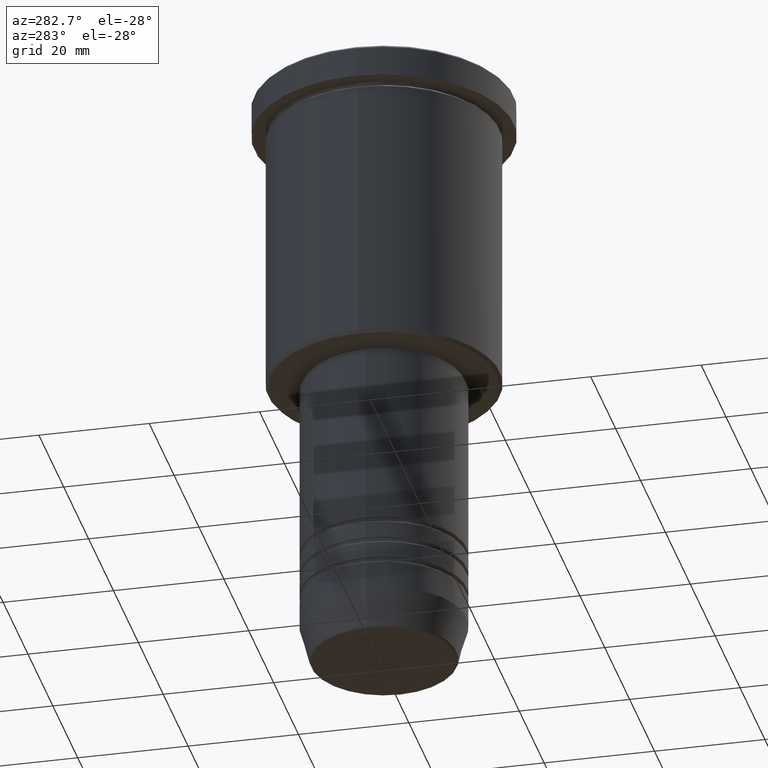
[diagram: clean part render]
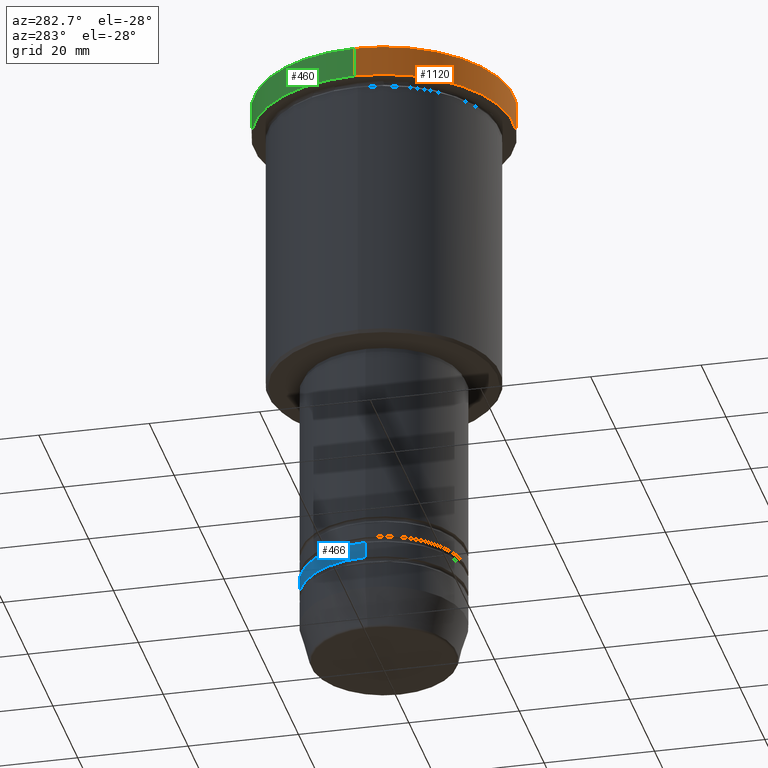
[diagram: same view with three faces highlighted in distinct colors, each labeled with its STEP entity id]
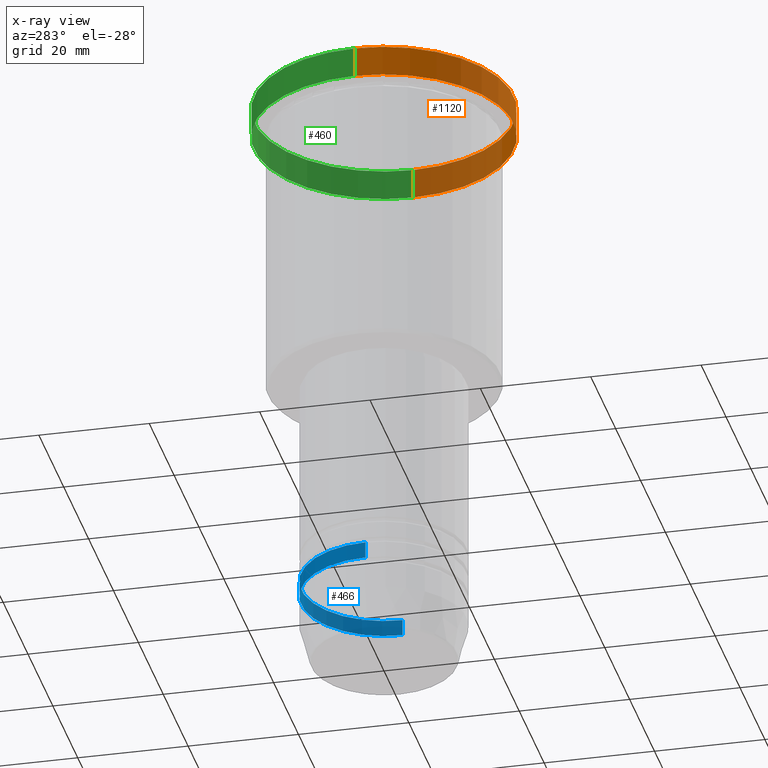
[diagram: x-ray of the same camera — body ghosted, the three highlighted faces saturated]
A machine part, auxiliary view with three faces highlighted in distinct colors.
The next image is the same camera in x-ray (body ghosted, the three faces saturated) — at least one of them is partly hidden behind the body in this view.
Their STEP definitions:

[orange] entity #1120 — the highlighted cylindrical surface (partial cylindrical patch) has radius 23.5 mm, axis along (-0, -0, 1).
#24 = AXIS2_PLACEMENT_3D ( 'NONE', #567, #1009, #561 ) ;
#31 = CARTESIAN_POINT ( 'NONE',  ( -23.50000000000000000, 2.877919977996280320E-15, -5.999999999999993783 ) ) ;
#86 = CARTESIAN_POINT ( 'NONE',  ( 23.50000000000000000, 0.000000000000000000, -5.999999999999993783 ) ) ;
#91 = DIRECTION ( 'NONE',  ( 1.000000000000000000, 0.000000000000000000, 0.000000000000000000 ) ) ;
#112 = CARTESIAN_POINT ( 'NONE',  ( 23.50000000000000000, 0.000000000000000000, 0.000000000000000000 ) ) ;
#135 = VECTOR ( 'NONE', #1050, 1000.000000000000000 ) ;
#152 = CIRCLE ( 'NONE', #1088, 23.50000000000000000 ) ;
#153 = CARTESIAN_POINT ( 'NONE',  ( 0.000000000000000000, 0.000000000000000000, -0.5000000000000281997 ) ) ;
#224 = EDGE_CURVE ( 'NONE', #808, #351, #494, .T. ) ;
#236 = CARTESIAN_POINT ( 'NONE',  ( -23.50000000000000000, 2.877919977996280320E-15, 0.000000000000000000 ) ) ;
#262 = EDGE_CURVE ( 'NONE', #644, #393, #152, .T. ) ;
#321 = AXIS2_PLACEMENT_3D ( 'NONE', #968, #410, #962 ) ;
#351 = VERTEX_POINT ( 'NONE', #86 ) ;
#393 = VERTEX_POINT ( 'NONE', #637 ) ;
#410 = DIRECTION ( 'NONE',  ( -0.000000000000000000, -0.000000000000000000, 1.000000000000000000 ) ) ;
#494 = CIRCLE ( 'NONE', #321, 23.50000000000000000 ) ;
#561 = DIRECTION ( 'NONE',  ( 1.000000000000000000, 0.000000000000000000, 0.000000000000000000 ) ) ;
#567 = CARTESIAN_POINT ( 'NONE',  ( 0.000000000000000000, 0.000000000000000000, 0.000000000000000000 ) ) ;
#620 = ORIENTED_EDGE ( 'NONE', *, *, #224, .T. ) ;
#631 = CYLINDRICAL_SURFACE ( 'NONE', #24, 23.50000000000000000 ) ;
#637 = CARTESIAN_POINT ( 'NONE',  ( -23.50000000000000000, 2.877919977996280320E-15, -0.5000000000000281997 ) ) ;
#644 = VERTEX_POINT ( 'NONE', #798 ) ;
#687 = ORIENTED_EDGE ( 'NONE', *, *, #262, .T. ) ;
#798 = CARTESIAN_POINT ( 'NONE',  ( 23.50000000000000000, 0.000000000000000000, -0.5000000000000281997 ) ) ;
#808 = VERTEX_POINT ( 'NONE', #31 ) ;
#819 = ORIENTED_EDGE ( 'NONE', *, *, #1090, .F. ) ;
#877 = LINE ( 'NONE', #236, #135 ) ;
#931 = LINE ( 'NONE', #112, #937 ) ;
#933 = EDGE_CURVE ( 'NONE', #351, #644, #931, .T. ) ;
#937 = VECTOR ( 'NONE', #1035, 1000.000000000000000 ) ;
#962 = DIRECTION ( 'NONE',  ( 1.000000000000000000, 0.000000000000000000, 0.000000000000000000 ) ) ;
#968 = CARTESIAN_POINT ( 'NONE',  ( 0.000000000000000000, 0.000000000000000000, -5.999999999999993783 ) ) ;
#1002 = DIRECTION ( 'NONE',  ( 0.000000000000000000, 0.000000000000000000, -1.000000000000000000 ) ) ;
#1009 = DIRECTION ( 'NONE',  ( -0.000000000000000000, -0.000000000000000000, 1.000000000000000000 ) ) ;
#1035 = DIRECTION ( 'NONE',  ( -0.000000000000000000, -0.000000000000000000, 1.000000000000000000 ) ) ;
#1050 = DIRECTION ( 'NONE',  ( -0.000000000000000000, -0.000000000000000000, 1.000000000000000000 ) ) ;
#1087 = ORIENTED_EDGE ( 'NONE', *, *, #933, .T. ) ;
#1088 = AXIS2_PLACEMENT_3D ( 'NONE', #153, #1002, #91 ) ;
#1090 = EDGE_CURVE ( 'NONE', #808, #393, #877, .T. ) ;
#1101 = FACE_OUTER_BOUND ( 'NONE', #1161, .T. ) ;
#1120 = ADVANCED_FACE ( 'NONE', ( #1101 ), #631, .T. ) ;
#1161 = EDGE_LOOP ( 'NONE', ( #819, #620, #1087, #687 ) ) ;

[blue] entity #466 — the highlighted cylindrical surface (partial cylindrical patch) has radius 15 mm, axis along (-0, -0, 1).
#44 = DIRECTION ( 'NONE',  ( 1.000000000000000000, 0.000000000000000000, 0.000000000000000000 ) ) ;
#60 = DIRECTION ( 'NONE',  ( -0.000000000000000000, -0.000000000000000000, 1.000000000000000000 ) ) ;
#80 = AXIS2_PLACEMENT_3D ( 'NONE', #190, #556, #916 ) ;
#113 = CARTESIAN_POINT ( 'NONE',  ( 15.00000000000000000, 0.000000000000000000, -97.99999999999988631 ) ) ;
#115 = VECTOR ( 'NONE', #842, 1000.000000000000000 ) ;
#116 = EDGE_CURVE ( 'NONE', #963, #912, #418, .T. ) ;
#190 = CARTESIAN_POINT ( 'NONE',  ( 0.000000000000000000, 0.000000000000000000, -94.99999999999988631 ) ) ;
#214 = CIRCLE ( 'NONE', #563, 15.00000000000000000 ) ;
#221 = CARTESIAN_POINT ( 'NONE',  ( 0.000000000000000000, 0.000000000000000000, -97.99999999999988631 ) ) ;
#227 = ORIENTED_EDGE ( 'NONE', *, *, #852, .F. ) ;
#250 = VERTEX_POINT ( 'NONE', #423 ) ;
#283 = VERTEX_POINT ( 'NONE', #113 ) ;
#319 = DIRECTION ( 'NONE',  ( 1.000000000000000000, 0.000000000000000000, 0.000000000000000000 ) ) ;
#379 = AXIS2_PLACEMENT_3D ( 'NONE', #758, #604, #319 ) ;
#391 = LINE ( 'NONE', #1116, #115 ) ;
#400 = ORIENTED_EDGE ( 'NONE', *, *, #757, .F. ) ;
#418 = LINE ( 'NONE', #788, #1045 ) ;
#423 = CARTESIAN_POINT ( 'NONE',  ( 15.00000000000000000, 0.000000000000000000, -94.99999999999988631 ) ) ;
#431 = CARTESIAN_POINT ( 'NONE',  ( -15.00000000000000000, 1.836970198721029589E-15, -97.99999999999988631 ) ) ;
#466 = ADVANCED_FACE ( 'NONE', ( #1139 ), #866, .T. ) ;
#556 = DIRECTION ( 'NONE',  ( -0.000000000000000000, -0.000000000000000000, 1.000000000000000000 ) ) ;
#563 = AXIS2_PLACEMENT_3D ( 'NONE', #221, #774, #44 ) ;
#604 = DIRECTION ( 'NONE',  ( -0.000000000000000000, -0.000000000000000000, 1.000000000000000000 ) ) ;
#757 = EDGE_CURVE ( 'NONE', #250, #912, #1070, .T. ) ;
#758 = CARTESIAN_POINT ( 'NONE',  ( 0.000000000000000000, 0.000000000000000000, 0.000000000000000000 ) ) ;
#774 = DIRECTION ( 'NONE',  ( -0.000000000000000000, -0.000000000000000000, 1.000000000000000000 ) ) ;
#788 = CARTESIAN_POINT ( 'NONE',  ( -15.00000000000000000, 1.836970198721029589E-15, 0.000000000000000000 ) ) ;
#825 = ORIENTED_EDGE ( 'NONE', *, *, #116, .T. ) ;
#842 = DIRECTION ( 'NONE',  ( -0.000000000000000000, -0.000000000000000000, 1.000000000000000000 ) ) ;
#852 = EDGE_CURVE ( 'NONE', #283, #250, #391, .T. ) ;
#866 = CYLINDRICAL_SURFACE ( 'NONE', #379, 15.00000000000000000 ) ;
#872 = EDGE_LOOP ( 'NONE', ( #1091, #825, #400, #227 ) ) ;
#873 = EDGE_CURVE ( 'NONE', #283, #963, #214, .T. ) ;
#912 = VERTEX_POINT ( 'NONE', #953 ) ;
#916 = DIRECTION ( 'NONE',  ( 1.000000000000000000, 0.000000000000000000, 0.000000000000000000 ) ) ;
#953 = CARTESIAN_POINT ( 'NONE',  ( -15.00000000000000000, 1.836970198721029589E-15, -94.99999999999988631 ) ) ;
#963 = VERTEX_POINT ( 'NONE', #431 ) ;
#1045 = VECTOR ( 'NONE', #60, 1000.000000000000000 ) ;
#1070 = CIRCLE ( 'NONE', #80, 15.00000000000000000 ) ;
#1091 = ORIENTED_EDGE ( 'NONE', *, *, #873, .T. ) ;
#1116 = CARTESIAN_POINT ( 'NONE',  ( 15.00000000000000000, 0.000000000000000000, 0.000000000000000000 ) ) ;
#1139 = FACE_OUTER_BOUND ( 'NONE', #872, .T. ) ;

[green] entity #460 — the highlighted cylindrical surface (partial cylindrical patch) has radius 23.5 mm, axis along (-0, -0, 1).
#3 = CIRCLE ( 'NONE', #37, 23.50000000000000000 ) ;
#31 = CARTESIAN_POINT ( 'NONE',  ( -23.50000000000000000, 2.877919977996280320E-15, -5.999999999999993783 ) ) ;
#37 = AXIS2_PLACEMENT_3D ( 'NONE', #944, #1131, #208 ) ;
#56 = DIRECTION ( 'NONE',  ( -0.000000000000000000, -0.000000000000000000, 1.000000000000000000 ) ) ;
#70 = EDGE_CURVE ( 'NONE', #393, #644, #3, .T. ) ;
#86 = CARTESIAN_POINT ( 'NONE',  ( 23.50000000000000000, 0.000000000000000000, -5.999999999999993783 ) ) ;
#112 = CARTESIAN_POINT ( 'NONE',  ( 23.50000000000000000, 0.000000000000000000, 0.000000000000000000 ) ) ;
#135 = VECTOR ( 'NONE', #1050, 1000.000000000000000 ) ;
#208 = DIRECTION ( 'NONE',  ( 1.000000000000000000, 0.000000000000000000, 0.000000000000000000 ) ) ;
#236 = CARTESIAN_POINT ( 'NONE',  ( -23.50000000000000000, 2.877919977996280320E-15, 0.000000000000000000 ) ) ;
#237 = CARTESIAN_POINT ( 'NONE',  ( 0.000000000000000000, 0.000000000000000000, -5.999999999999993783 ) ) ;
#351 = VERTEX_POINT ( 'NONE', #86 ) ;
#390 = ORIENTED_EDGE ( 'NONE', *, *, #70, .T. ) ;
#393 = VERTEX_POINT ( 'NONE', #637 ) ;
#460 = ADVANCED_FACE ( 'NONE', ( #668 ), #589, .T. ) ;
#589 = CYLINDRICAL_SURFACE ( 'NONE', #743, 23.50000000000000000 ) ;
#637 = CARTESIAN_POINT ( 'NONE',  ( -23.50000000000000000, 2.877919977996280320E-15, -0.5000000000000281997 ) ) ;
#644 = VERTEX_POINT ( 'NONE', #798 ) ;
#648 = EDGE_CURVE ( 'NONE', #351, #808, #995, .T. ) ;
#668 = FACE_OUTER_BOUND ( 'NONE', #789, .T. ) ;
#743 = AXIS2_PLACEMENT_3D ( 'NONE', #862, #939, #769 ) ;
#769 = DIRECTION ( 'NONE',  ( 1.000000000000000000, 0.000000000000000000, 0.000000000000000000 ) ) ;
#780 = DIRECTION ( 'NONE',  ( 1.000000000000000000, 0.000000000000000000, 0.000000000000000000 ) ) ;
#789 = EDGE_LOOP ( 'NONE', ( #956, #1003, #390, #1153 ) ) ;
#798 = CARTESIAN_POINT ( 'NONE',  ( 23.50000000000000000, 0.000000000000000000, -0.5000000000000281997 ) ) ;
#801 = AXIS2_PLACEMENT_3D ( 'NONE', #237, #56, #780 ) ;
#808 = VERTEX_POINT ( 'NONE', #31 ) ;
#862 = CARTESIAN_POINT ( 'NONE',  ( 0.000000000000000000, 0.000000000000000000, 0.000000000000000000 ) ) ;
#877 = LINE ( 'NONE', #236, #135 ) ;
#931 = LINE ( 'NONE', #112, #937 ) ;
#933 = EDGE_CURVE ( 'NONE', #351, #644, #931, .T. ) ;
#937 = VECTOR ( 'NONE', #1035, 1000.000000000000000 ) ;
#939 = DIRECTION ( 'NONE',  ( -0.000000000000000000, -0.000000000000000000, 1.000000000000000000 ) ) ;
#944 = CARTESIAN_POINT ( 'NONE',  ( 0.000000000000000000, 0.000000000000000000, -0.5000000000000281997 ) ) ;
#956 = ORIENTED_EDGE ( 'NONE', *, *, #648, .T. ) ;
#995 = CIRCLE ( 'NONE', #801, 23.50000000000000000 ) ;
#1003 = ORIENTED_EDGE ( 'NONE', *, *, #1090, .T. ) ;
#1035 = DIRECTION ( 'NONE',  ( -0.000000000000000000, -0.000000000000000000, 1.000000000000000000 ) ) ;
#1050 = DIRECTION ( 'NONE',  ( -0.000000000000000000, -0.000000000000000000, 1.000000000000000000 ) ) ;
#1090 = EDGE_CURVE ( 'NONE', #808, #393, #877, .T. ) ;
#1131 = DIRECTION ( 'NONE',  ( 0.000000000000000000, 0.000000000000000000, -1.000000000000000000 ) ) ;
#1153 = ORIENTED_EDGE ( 'NONE', *, *, #933, .F. ) ;